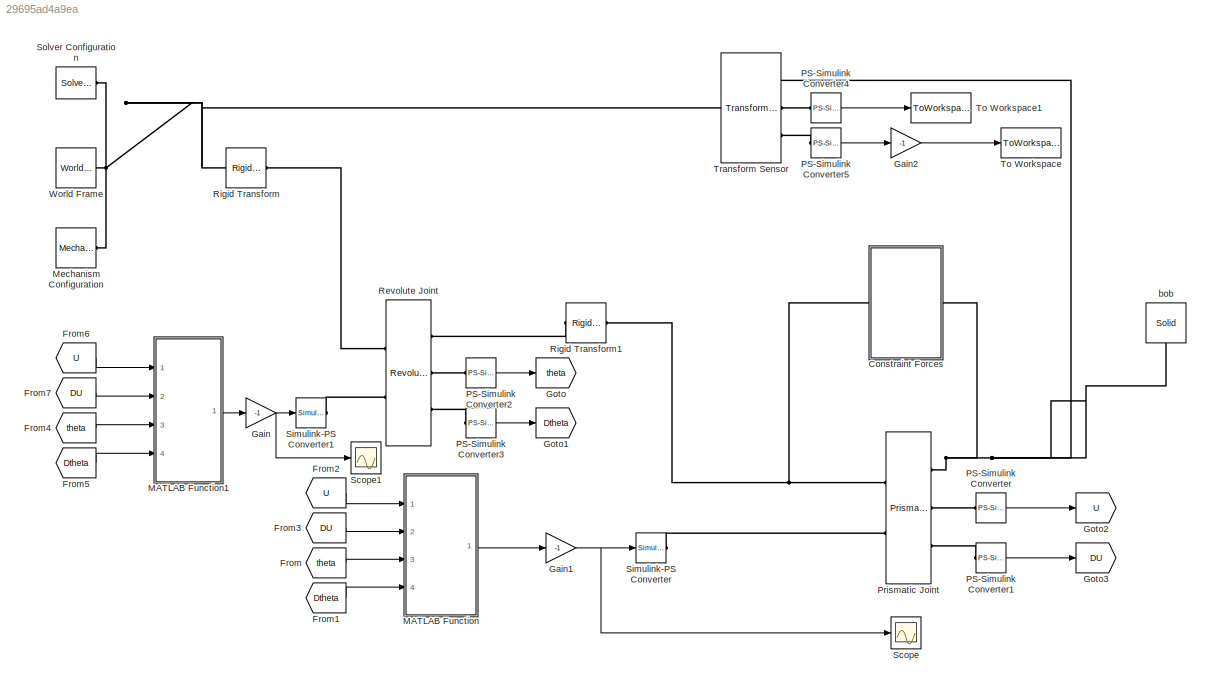
MODEL slx_29695ad4a9ea
KIND model
CONFIG AbsTol = auto
CONFIG EnableMultiTasking = on
CONFIG FixedStep = auto
CONFIG MaxStep = auto
CONFIG MinStep = auto
CONFIG RelTol = 1e-3
CONFIG SampleTimeConstraint = Unconstrained
CONFIG Solver = VariableStepAuto
CONFIG SolverName = VariableStepAuto
CONFIG StartTime = 0.0
CONFIG StopTime = 10.0
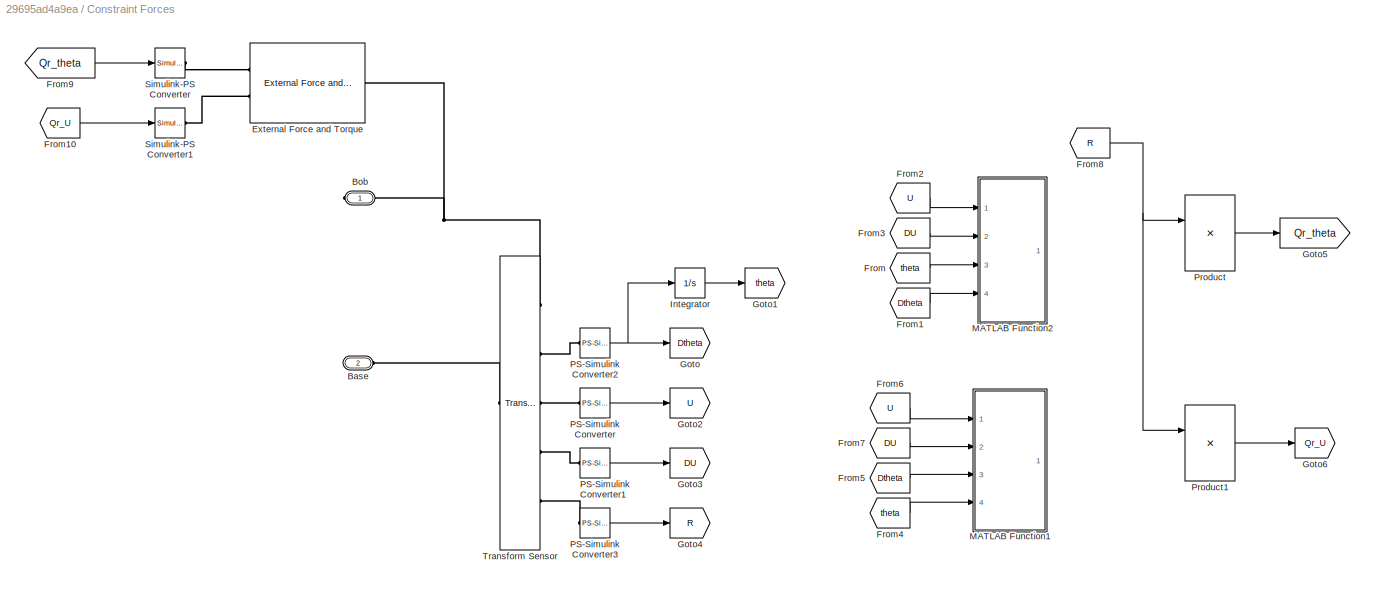
BLOCK [SubSystem] Constraint Forces
  Commented = on
  Ports = [0, 0, 0, 0, 0, 1, 1]
  RequestExecContextInheritance = off
  Variant = off
BLOCK [PMIOPort] Constraint Forces/Base
  Port = 2
  Side = Left
BLOCK [PMIOPort] Constraint Forces/Bob
  Port = 1
  Side = Right
BLOCK [Reference] Constraint Forces/External Force and Torque  REF=sm_lib/Forces and
Torques/External Force
and Torque
  Ports = [0, 0, 0, 0, 0, 2, 1]
  SourceBlock = sm_lib/Forces and\nTorques/External Force\nand Torque
  SourceProductBaseCode = MS
  SourceProductName = Simscape Multibody
  SourceType = External Force\nand Torque
BLOCK [From] Constraint Forces/From
  GotoTag = theta
BLOCK [From] Constraint Forces/From1
  GotoTag = Dtheta
BLOCK [From] Constraint Forces/From10
  GotoTag = Qr_U
BLOCK [From] Constraint Forces/From2
  GotoTag = U
BLOCK [From] Constraint Forces/From3
  GotoTag = DU
BLOCK [From] Constraint Forces/From4
  GotoTag = theta
BLOCK [From] Constraint Forces/From5
  GotoTag = Dtheta
BLOCK [From] Constraint Forces/From6
  GotoTag = U
BLOCK [From] Constraint Forces/From7
  GotoTag = DU
BLOCK [From] Constraint Forces/From8
  GotoTag = R
BLOCK [From] Constraint Forces/From9
  GotoTag = Qr_theta
BLOCK [Goto] Constraint Forces/Goto
  GotoTag = Dtheta
BLOCK [Goto] Constraint Forces/Goto1
  GotoTag = theta
BLOCK [Goto] Constraint Forces/Goto2
  GotoTag = U
BLOCK [Goto] Constraint Forces/Goto3
  GotoTag = DU
BLOCK [Goto] Constraint Forces/Goto4
  GotoTag = R
BLOCK [Goto] Constraint Forces/Goto5
  GotoTag = Qr_theta
BLOCK [Goto] Constraint Forces/Goto6
  GotoTag = Qr_U
BLOCK [Integrator] Constraint Forces/Integrator
  Ports = [1, 1]
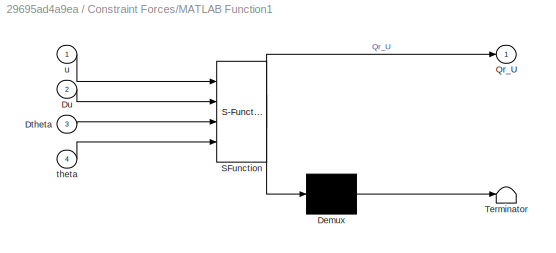
BLOCK [SubSystem] Constraint Forces/MATLAB Function1
  ErrorFcn = Stateflow.Translate.translate
  PermitHierarchicalResolution = ExplicitOnly
  Ports = [4, 1]
  RequestExecContextInheritance = off
  SFBlockType = MATLAB Function
  TreatAsAtomicUnit = on
  Variant = off
BLOCK [Demux] Constraint Forces/MATLAB Function1/ Demux 
  Outputs = 1
  Ports = [1, 1]
BLOCK [S-Function] Constraint Forces/MATLAB Function1/ SFunction 
  EnableBusSupport = on
  FunctionName = sf_sfun
  Parameters = K,g,l,m
  PortCounts = [4 2]
  Ports = [4, 2]
  SFcnIsStateOwnerBlock = off
  SFunctionDeploymentMode = off
  Tag = Stateflow S-Function ConstrainedPendulum 4
BLOCK [Terminator] Constraint Forces/MATLAB Function1/ Terminator 
BLOCK [Inport] Constraint Forces/MATLAB Function1/Dtheta
  IconDisplay = Port number
  Port = 3
BLOCK [Inport] Constraint Forces/MATLAB Function1/Du
  IconDisplay = Port number
  Port = 2
BLOCK [Outport] Constraint Forces/MATLAB Function1/Qr_U
  IconDisplay = Port number
BLOCK [Inport] Constraint Forces/MATLAB Function1/theta
  IconDisplay = Port number
  Port = 4
BLOCK [Inport] Constraint Forces/MATLAB Function1/u
  IconDisplay = Port number
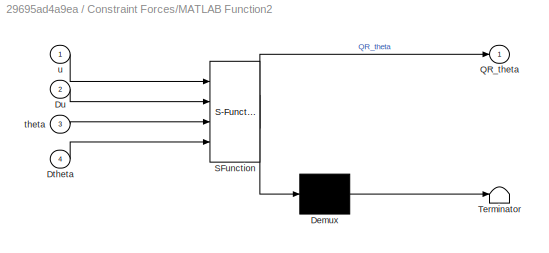
BLOCK [SubSystem] Constraint Forces/MATLAB Function2
  ErrorFcn = Stateflow.Translate.translate
  PermitHierarchicalResolution = ExplicitOnly
  Ports = [4, 1]
  RequestExecContextInheritance = off
  SFBlockType = MATLAB Function
  TreatAsAtomicUnit = on
  Variant = off
BLOCK [Demux] Constraint Forces/MATLAB Function2/ Demux 
  Outputs = 1
  Ports = [1, 1]
BLOCK [S-Function] Constraint Forces/MATLAB Function2/ SFunction 
  EnableBusSupport = on
  FunctionName = sf_sfun
  Parameters = K,g,l,m
  PortCounts = [4 2]
  Ports = [4, 2]
  SFcnIsStateOwnerBlock = off
  SFunctionDeploymentMode = off
  Tag = Stateflow S-Function ConstrainedPendulum 3
BLOCK [Terminator] Constraint Forces/MATLAB Function2/ Terminator 
BLOCK [Inport] Constraint Forces/MATLAB Function2/Dtheta
  IconDisplay = Port number
  Port = 4
BLOCK [Inport] Constraint Forces/MATLAB Function2/Du
  IconDisplay = Port number
  Port = 2
BLOCK [Outport] Constraint Forces/MATLAB Function2/QR_theta
  IconDisplay = Port number
BLOCK [Inport] Constraint Forces/MATLAB Function2/theta
  IconDisplay = Port number
  Port = 3
BLOCK [Inport] Constraint Forces/MATLAB Function2/u
  IconDisplay = Port number
BLOCK [Reference] Constraint Forces/PS-Simulink Converter  REF=nesl_utility/PS-Simulink
Converter
  Ports = [0, 1, 0, 0, 0, 1]
  SourceBlock = nesl_utility/PS-Simulink\nConverter
  SourceProductBaseCode = SS
  SourceProductName = Simscape
  SourceType = PS-Simulink\nConverter
BLOCK [Reference] Constraint Forces/PS-Simulink Converter1  REF=nesl_utility/PS-Simulink
Converter
  Ports = [0, 1, 0, 0, 0, 1]
  SourceBlock = nesl_utility/PS-Simulink\nConverter
  SourceProductBaseCode = SS
  SourceProductName = Simscape
  SourceType = PS-Simulink\nConverter
BLOCK [Reference] Constraint Forces/PS-Simulink Converter2  REF=nesl_utility/PS-Simulink
Converter
  Ports = [0, 1, 0, 0, 0, 1]
  SourceBlock = nesl_utility/PS-Simulink\nConverter
  SourceProductBaseCode = SS
  SourceProductName = Simscape
  SourceType = PS-Simulink\nConverter
BLOCK [Reference] Constraint Forces/PS-Simulink Converter3  REF=nesl_utility/PS-Simulink
Converter
  Ports = [0, 1, 0, 0, 0, 1]
  SourceBlock = nesl_utility/PS-Simulink\nConverter
  SourceProductBaseCode = SS
  SourceProductName = Simscape
  SourceType = PS-Simulink\nConverter
BLOCK [Product] Constraint Forces/Product
  InputSameDT = off
  Inputs = /*
  Multiplication = Matrix(*)
  OutDataTypeStr = Inherit: Inherit via internal rule
  Ports = [2, 1]
  RndMeth = Floor
  SaturateOnIntegerOverflow = off
BLOCK [Product] Constraint Forces/Product1
  InputSameDT = off
  Inputs = /*
  Multiplication = Matrix(*)
  OutDataTypeStr = Inherit: Inherit via internal rule
  Ports = [2, 1]
  RndMeth = Floor
  SaturateOnIntegerOverflow = off
BLOCK [Reference] Constraint Forces/Simulink-PS Converter  REF=nesl_utility/Simulink-PS
Converter
  Ports = [1, 0, 0, 0, 0, 0, 1]
  SourceBlock = nesl_utility/Simulink-PS\nConverter
  SourceProductBaseCode = SS
  SourceProductName = Simscape
  SourceType = Simulink-PS\nConverter
BLOCK [Reference] Constraint Forces/Simulink-PS Converter1  REF=nesl_utility/Simulink-PS
Converter
  Ports = [1, 0, 0, 0, 0, 0, 1]
  SourceBlock = nesl_utility/Simulink-PS\nConverter
  SourceProductBaseCode = SS
  SourceProductName = Simscape
  SourceType = Simulink-PS\nConverter
BLOCK [Reference] Constraint Forces/Transform Sensor  REF=sm_lib/Frames and
Transforms/Transform
Sensor
  Ports = [0, 0, 0, 0, 0, 1, 5]
  SourceBlock = sm_lib/Frames and\nTransforms/Transform\nSensor
  SourceProductBaseCode = MS
  SourceProductName = Simscape Multibody
  SourceType = Transform\nSensor
BLOCK [From] From
  GotoTag = theta
BLOCK [From] From1
  GotoTag = Dtheta
BLOCK [From] From2
  GotoTag = U
BLOCK [From] From3
  GotoTag = DU
BLOCK [From] From4
  GotoTag = theta
BLOCK [From] From5
  GotoTag = Dtheta
BLOCK [From] From6
  GotoTag = U
BLOCK [From] From7
  GotoTag = DU
BLOCK [Gain] Gain
  Commented = through
  Gain = -1
  OutDataTypeStr = Inherit: Inherit via internal rule
  ParamDataTypeStr = Inherit: Inherit via internal rule
  SaturateOnIntegerOverflow = off
BLOCK [Gain] Gain1
  Commented = through
  Gain = -1
  OutDataTypeStr = Inherit: Inherit via internal rule
  ParamDataTypeStr = Inherit: Inherit via internal rule
  SaturateOnIntegerOverflow = off
BLOCK [Gain] Gain2
  Gain = -1
  OutDataTypeStr = Inherit: Inherit via internal rule
  ParamDataTypeStr = Inherit: Inherit via internal rule
  SaturateOnIntegerOverflow = off
BLOCK [Goto] Goto
  GotoTag = theta
BLOCK [Goto] Goto1
  GotoTag = Dtheta
BLOCK [Goto] Goto2
  GotoTag = U
BLOCK [Goto] Goto3
  GotoTag = DU
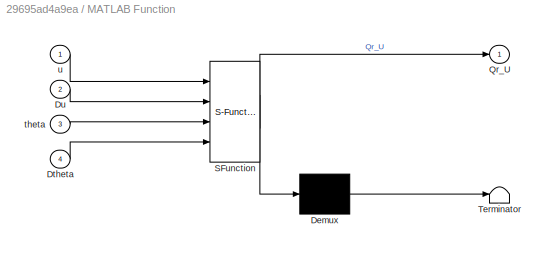
BLOCK [SubSystem] MATLAB Function
  ErrorFcn = Stateflow.Translate.translate
  PermitHierarchicalResolution = ExplicitOnly
  Ports = [4, 1]
  RequestExecContextInheritance = off
  SFBlockType = MATLAB Function
  TreatAsAtomicUnit = on
  Variant = off
BLOCK [Demux] MATLAB Function/ Demux 
  Outputs = 1
  Ports = [1, 1]
BLOCK [S-Function] MATLAB Function/ SFunction 
  EnableBusSupport = on
  FunctionName = sf_sfun
  Parameters = K,g,l,m
  PortCounts = [4 2]
  Ports = [4, 2]
  SFcnIsStateOwnerBlock = off
  SFunctionDeploymentMode = off
  Tag = Stateflow S-Function ConstrainedPendulum 2
BLOCK [Terminator] MATLAB Function/ Terminator 
BLOCK [Inport] MATLAB Function/Dtheta
  IconDisplay = Port number
  Port = 4
BLOCK [Inport] MATLAB Function/Du
  IconDisplay = Port number
  Port = 2
BLOCK [Outport] MATLAB Function/Qr_U
  IconDisplay = Port number
BLOCK [Inport] MATLAB Function/theta
  IconDisplay = Port number
  Port = 3
BLOCK [Inport] MATLAB Function/u
  IconDisplay = Port number
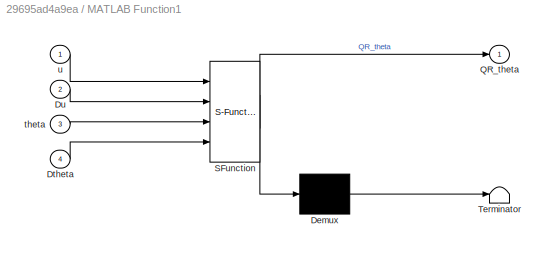
BLOCK [SubSystem] MATLAB Function1
  ErrorFcn = Stateflow.Translate.translate
  PermitHierarchicalResolution = ExplicitOnly
  Ports = [4, 1]
  RequestExecContextInheritance = off
  SFBlockType = MATLAB Function
  TreatAsAtomicUnit = on
  Variant = off
BLOCK [Demux] MATLAB Function1/ Demux 
  Outputs = 1
  Ports = [1, 1]
BLOCK [S-Function] MATLAB Function1/ SFunction 
  EnableBusSupport = on
  FunctionName = sf_sfun
  Parameters = K,g,l,m
  PortCounts = [4 2]
  Ports = [4, 2]
  SFcnIsStateOwnerBlock = off
  SFunctionDeploymentMode = off
  Tag = Stateflow S-Function ConstrainedPendulum 1
BLOCK [Terminator] MATLAB Function1/ Terminator 
BLOCK [Inport] MATLAB Function1/Dtheta
  IconDisplay = Port number
  Port = 4
BLOCK [Inport] MATLAB Function1/Du
  IconDisplay = Port number
  Port = 2
BLOCK [Outport] MATLAB Function1/QR_theta
  IconDisplay = Port number
BLOCK [Inport] MATLAB Function1/theta
  IconDisplay = Port number
  Port = 3
BLOCK [Inport] MATLAB Function1/u
  IconDisplay = Port number
BLOCK [Reference] Mechanism Configuration  REF=sm_lib/Utilities/Mechanism
Configuration
  Ports = [0, 0, 0, 0, 0, 0, 1]
  SourceBlock = sm_lib/Utilities/Mechanism\nConfiguration
  SourceProductBaseCode = MS
  SourceProductName = Simscape Multibody
  SourceType = Mechanism\nConfiguration
BLOCK [Reference] PS-Simulink Converter  REF=nesl_utility/PS-Simulink
Converter
  Ports = [0, 1, 0, 0, 0, 1]
  SourceBlock = nesl_utility/PS-Simulink\nConverter
  SourceProductBaseCode = SS
  SourceProductName = Simscape
  SourceType = PS-Simulink\nConverter
BLOCK [Reference] PS-Simulink Converter1  REF=nesl_utility/PS-Simulink
Converter
  Ports = [0, 1, 0, 0, 0, 1]
  SourceBlock = nesl_utility/PS-Simulink\nConverter
  SourceProductBaseCode = SS
  SourceProductName = Simscape
  SourceType = PS-Simulink\nConverter
BLOCK [Reference] PS-Simulink Converter2  REF=nesl_utility/PS-Simulink
Converter
  Ports = [0, 1, 0, 0, 0, 1]
  SourceBlock = nesl_utility/PS-Simulink\nConverter
  SourceProductBaseCode = SS
  SourceProductName = Simscape
  SourceType = PS-Simulink\nConverter
BLOCK [Reference] PS-Simulink Converter3  REF=nesl_utility/PS-Simulink
Converter
  Ports = [0, 1, 0, 0, 0, 1]
  SourceBlock = nesl_utility/PS-Simulink\nConverter
  SourceProductBaseCode = SS
  SourceProductName = Simscape
  SourceType = PS-Simulink\nConverter
BLOCK [Reference] PS-Simulink Converter4  REF=nesl_utility/PS-Simulink
Converter
  Ports = [0, 1, 0, 0, 0, 1]
  SourceBlock = nesl_utility/PS-Simulink\nConverter
  SourceProductBaseCode = SS
  SourceProductName = Simscape
  SourceType = PS-Simulink\nConverter
BLOCK [Reference] PS-Simulink Converter5  REF=nesl_utility/PS-Simulink
Converter
  Ports = [0, 1, 0, 0, 0, 1]
  SourceBlock = nesl_utility/PS-Simulink\nConverter
  SourceProductBaseCode = SS
  SourceProductName = Simscape
  SourceType = PS-Simulink\nConverter
BLOCK [Reference] Prismatic Joint  REF=sm_lib/Joints/Prismatic
Joint
  Ports = [0, 0, 0, 0, 0, 2, 3]
  SourceBlock = sm_lib/Joints/Prismatic\nJoint
  SourceProductBaseCode = MS
  SourceProductName = Simscape Multibody
  SourceType = Prismatic\nJoint
BLOCK [Reference] Revolute Joint  REF=sm_lib/Joints/Revolute Joint
  Ports = [0, 0, 0, 0, 0, 2, 3]
  SourceBlock = sm_lib/Joints/Revolute Joint
  SourceProductBaseCode = MS
  SourceProductName = Simscape Multibody
  SourceType = Revolute Joint
BLOCK [Reference] Rigid Transform  REF=sm_lib/Frames and
Transforms/Rigid
Transform
  Ports = [0, 0, 0, 0, 0, 1, 1]
  SourceBlock = sm_lib/Frames and\nTransforms/Rigid\nTransform
  SourceProductBaseCode = MS
  SourceProductName = Simscape Multibody
  SourceType = Rigid\nTransform
BLOCK [Reference] Rigid Transform1  REF=sm_lib/Frames and
Transforms/Rigid
Transform
  Ports = [0, 0, 0, 0, 0, 1, 1]
  SourceBlock = sm_lib/Frames and\nTransforms/Rigid\nTransform
  SourceProductBaseCode = MS
  SourceProductName = Simscape Multibody
  SourceType = Rigid\nTransform
BLOCK [Scope] Scope
  NumInputPorts = 1
  Ports = [1]
  ScopeSpecificationString = Simulink.scopes.TimeScopeBlockCfg('CurrentConfiguration', extmgr.ConfigurationSet(extmgr.Configuration('Core','General UI',true),extmgr.Configuration('Core','Source UI',true),extmgr.Configuration('Sources','WiredSimulink',true),extmgr.Configuration('Visuals','Time Domain',true,'SerializedDisplays',{struct('MinYLimReal','-23278.83095','MaxYLimReal','209831.67857','YLabelReal','','MinYLimMag','   0....<+1388ch>
BLOCK [Scope] Scope1
  NumInputPorts = 1
  Ports = [1]
  ScopeSpecificationString = Simulink.scopes.TimeScopeBlockCfg('CurrentConfiguration', extmgr.ConfigurationSet(extmgr.Configuration('Core','General UI',true),extmgr.Configuration('Core','Source UI',true),extmgr.Configuration('Sources','WiredSimulink',true,'DataLoggingVariableName','ScopeData1'),extmgr.Configuration('Visuals','Time Domain',true,'SerializedDisplays',{struct('MinYLimReal','-130857.75579','MaxYLimReal','1177719.8...<+1435ch>
BLOCK [Reference] Simulink-PS Converter  REF=nesl_utility/Simulink-PS
Converter
  Ports = [1, 0, 0, 0, 0, 0, 1]
  SourceBlock = nesl_utility/Simulink-PS\nConverter
  SourceProductBaseCode = SS
  SourceProductName = Simscape
  SourceType = Simulink-PS\nConverter
BLOCK [Reference] Simulink-PS Converter1  REF=nesl_utility/Simulink-PS
Converter
  Ports = [1, 0, 0, 0, 0, 0, 1]
  SourceBlock = nesl_utility/Simulink-PS\nConverter
  SourceProductBaseCode = SS
  SourceProductName = Simscape
  SourceType = Simulink-PS\nConverter
BLOCK [Reference] Solver Configuration  REF=nesl_utility/Solver
Configuration
  Ports = [0, 0, 0, 0, 0, 0, 1]
  SourceBlock = nesl_utility/Solver\nConfiguration
  SourceProductBaseCode = SS
  SourceProductName = Simscape
  SourceType = Solver\nConfiguration
BLOCK [ToWorkspace] To Workspace
  FixptAsFi = on
  MaxDataPoints = inf
  Ports = [1]
  SampleTime = -1
  Save2DSignal = 3-D array (concatenate along third dimension)
  SaveFormat = Timeseries
  VariableName = PosY
BLOCK [ToWorkspace] To Workspace1
  FixptAsFi = on
  MaxDataPoints = inf
  Ports = [1]
  SampleTime = -1
  Save2DSignal = 3-D array (concatenate along third dimension)
  SaveFormat = Timeseries
  VariableName = PosX
BLOCK [Reference] Transform Sensor  REF=sm_lib/Frames and
Transforms/Transform
Sensor
  Ports = [0, 0, 0, 0, 0, 1, 3]
  SourceBlock = sm_lib/Frames and\nTransforms/Transform\nSensor
  SourceProductBaseCode = MS
  SourceProductName = Simscape Multibody
  SourceType = Transform\nSensor
BLOCK [Reference] World Frame  REF=sm_lib/Frames and
Transforms/World Frame
  Ports = [0, 0, 0, 0, 0, 0, 1]
  SourceBlock = sm_lib/Frames and\nTransforms/World Frame
  SourceProductBaseCode = MS
  SourceProductName = Simscape Multibody
  SourceType = World Frame
BLOCK [Reference] bob  REF=sm_lib/Body Elements/Solid
  Ports = [0, 0, 0, 0, 0, 0, 1]
  SourceBlock = sm_lib/Body Elements/Solid
  SourceProductBaseCode = MS
  SourceProductName = Simscape Multibody
  SourceType = Solid
LINE Constraint Forces/From10:1 -> Constraint Forces/Simulink-PS Converter1:1
LINE Constraint Forces/From1:1 -> Constraint Forces/MATLAB Function2:4
LINE Constraint Forces/From2:1 -> Constraint Forces/MATLAB Function2:1
LINE Constraint Forces/From3:1 -> Constraint Forces/MATLAB Function2:2
LINE Constraint Forces/From4:1 -> Constraint Forces/MATLAB Function1:4
LINE Constraint Forces/From5:1 -> Constraint Forces/MATLAB Function1:3
LINE Constraint Forces/From6:1 -> Constraint Forces/MATLAB Function1:1
LINE Constraint Forces/From7:1 -> Constraint Forces/MATLAB Function1:2
NET Constraint Forces/From8:1 -> Constraint Forces/Product1:1, Constraint Forces/Product:1
LINE Constraint Forces/From9:1 -> Constraint Forces/Simulink-PS Converter:1
LINE Constraint Forces/From:1 -> Constraint Forces/MATLAB Function2:3
LINE Constraint Forces/Integrator:1 -> Constraint Forces/Goto1:1
LINE Constraint Forces/PS-Simulink Converter1:1 -> Constraint Forces/Goto3:1
NET Constraint Forces/PS-Simulink Converter2:1 -> Constraint Forces/Goto:1, Constraint Forces/Integrator:1
LINE Constraint Forces/PS-Simulink Converter3:1 -> Constraint Forces/Goto4:1
LINE Constraint Forces/PS-Simulink Converter:1 -> Constraint Forces/Goto2:1
LINE Constraint Forces/Product1:1 -> Constraint Forces/Goto6:1
LINE Constraint Forces/Product:1 -> Constraint Forces/Goto5:1
LINE From1:1 -> MATLAB Function:4
LINE From2:1 -> MATLAB Function:1
LINE From3:1 -> MATLAB Function:2
LINE From4:1 -> MATLAB Function1:3
LINE From5:1 -> MATLAB Function1:4
LINE From6:1 -> MATLAB Function1:1
LINE From7:1 -> MATLAB Function1:2
LINE From:1 -> MATLAB Function:3
NET Gain1:1 -> Scope:1, Simulink-PS Converter:1
LINE Gain2:1 -> To Workspace:1
NET Gain:1 -> Scope1:1, Simulink-PS Converter1:1
LINE MATLAB Function1:1 -> Gain:1
LINE MATLAB Function:1 -> Gain1:1
LINE PS-Simulink Converter1:1 -> Goto3:1
LINE PS-Simulink Converter2:1 -> Goto:1
LINE PS-Simulink Converter3:1 -> Goto1:1
LINE PS-Simulink Converter4:1 -> To Workspace1:1
LINE PS-Simulink Converter5:1 -> Gain2:1
LINE PS-Simulink Converter:1 -> Goto2:1
PLINE Constraint Forces/Base:RConn1 -- Constraint Forces/Transform Sensor:LConn1
PNET net1: Constraint Forces/Bob:RConn1 -- Constraint Forces/External Force and Torque:RConn1 -- Constraint Forces/Transform Sensor:RConn1
PLINE Constraint Forces/External Force and Torque:LConn1 -- Constraint Forces/Simulink-PS Converter:RConn1
PLINE Constraint Forces/External Force and Torque:LConn2 -- Constraint Forces/Simulink-PS Converter1:RConn1
PLINE Constraint Forces/PS-Simulink Converter1:LConn1 -- Constraint Forces/Transform Sensor:RConn4
PLINE Constraint Forces/PS-Simulink Converter2:LConn1 -- Constraint Forces/Transform Sensor:RConn2
PLINE Constraint Forces/PS-Simulink Converter3:LConn1 -- Constraint Forces/Transform Sensor:RConn5
PLINE Constraint Forces/PS-Simulink Converter:LConn1 -- Constraint Forces/Transform Sensor:RConn3
PNET net2: Constraint Forces:LConn1 -- Prismatic Joint:LConn1 -- Rigid Transform1:RConn1
PNET net3: Constraint Forces:RConn1 -- Prismatic Joint:RConn1 -- Transform Sensor:RConn1 -- bob:RConn1
PNET net4: Mechanism Configuration:RConn1 -- Rigid Transform:LConn1 -- Solver Configuration:RConn1 -- Transform Sensor:LConn1 -- World Frame:RConn1
PLINE PS-Simulink Converter1:LConn1 -- Prismatic Joint:RConn3
PLINE PS-Simulink Converter2:LConn1 -- Revolute Joint:RConn2
PLINE PS-Simulink Converter3:LConn1 -- Revolute Joint:RConn3
PLINE PS-Simulink Converter4:LConn1 -- Transform Sensor:RConn2
PLINE PS-Simulink Converter5:LConn1 -- Transform Sensor:RConn3
PLINE PS-Simulink Converter:LConn1 -- Prismatic Joint:RConn2
PLINE Prismatic Joint:LConn2 -- Simulink-PS Converter:RConn1
PLINE Revolute Joint:LConn1 -- Rigid Transform:RConn1
PLINE Revolute Joint:LConn2 -- Simulink-PS Converter1:RConn1
PLINE Revolute Joint:RConn1 -- Rigid Transform1:LConn1
note: NET lines group one-source signal fan-out (src -> all destinations, sorted); 1:1 wires keep LINE; PNET lines group multi-terminal physical nets as a canonical sorted terminal list (undirected conserving connections); 2-terminal nets keep the pairwise PLINE form
CHART MATLAB Function1 states=1 transitions=1
  STATE_LABEL 'eML_blk_kernel()'
  STATE_LABEL 'SCRIPT:\nfunction QR_theta = fcn(u,Du,theta,Dtheta, m, l, g, K)\n\nQR_theta = -(2*l^2*m*theta*(l + u)^2*(2*Dtheta^2 + (g*m*cos(theta) - K*u + Dtheta^2*l*m + Dtheta^2*m*u)/(l*m) - (2*theta*(g*sin(theta) + 2*Dtheta*Du))/(l + u)))/(4*l^2*theta^2 + l^2 + 2*l*u + u^2)\n;\n'
CHART MATLAB Function states=1 transitions=1
  STATE_LABEL 'eML_blk_kernel()'
  STATE_LABEL 'SCRIPT:\nfunction Qr_U = fcn(u,Du,theta,Dtheta,m, l, K, g)\n\nQr_U = -(l*m*(l + u)^2*(2*Dtheta^2 + (g*m*cos(theta) - K*u + Dtheta^2*l*m + Dtheta^2*m*u)/(l*m) - (2*theta*(g*sin(theta) + 2*Dtheta*Du))/(l + u)))/(4*l^2*theta^2 + l^2 + 2*l*u + u^2)\n;\n'
CHART Constraint Forces/MATLAB Function2 states=1 transitions=1
  STATE_LABEL 'eML_blk_kernel()'
  STATE_LABEL 'SCRIPT:\nfunction QR_theta = fcn(u,Du,theta,Dtheta, m, l, g, K)\n\nQR_theta = -(2*l^2*m*theta*(l + u)^2*(2*Dtheta^2 + (g*m*cos(theta) - K*u + Dtheta^2*l*m + Dtheta^2*m*u)/(l*m) - (2*theta*(g*sin(theta) + 2*Dtheta*Du))/(l + u)))/(4*l^2*theta^2 + l^2 + 2*l*u + u^2)\n;\n'
CHART Constraint Forces/MATLAB Function1 states=1 transitions=1
  STATE_LABEL 'eML_blk_kernel()'
  STATE_LABEL 'SCRIPT:\nfunction Qr_U = fcn(u,Du,Dtheta,theta,m, l, K, g)\n\nQr_U = -(l*m*(l + u)^2*(2*Dtheta^2 + (g*m*cos(theta) - K*u + Dtheta^2*l*m + Dtheta^2*m*u)/(l*m) - (2*theta*(g*sin(theta) + 2*Dtheta*Du))/(l + u)))/(4*l^2*theta^2 + l^2 + 2*l*u + u^2)\n;\n'
